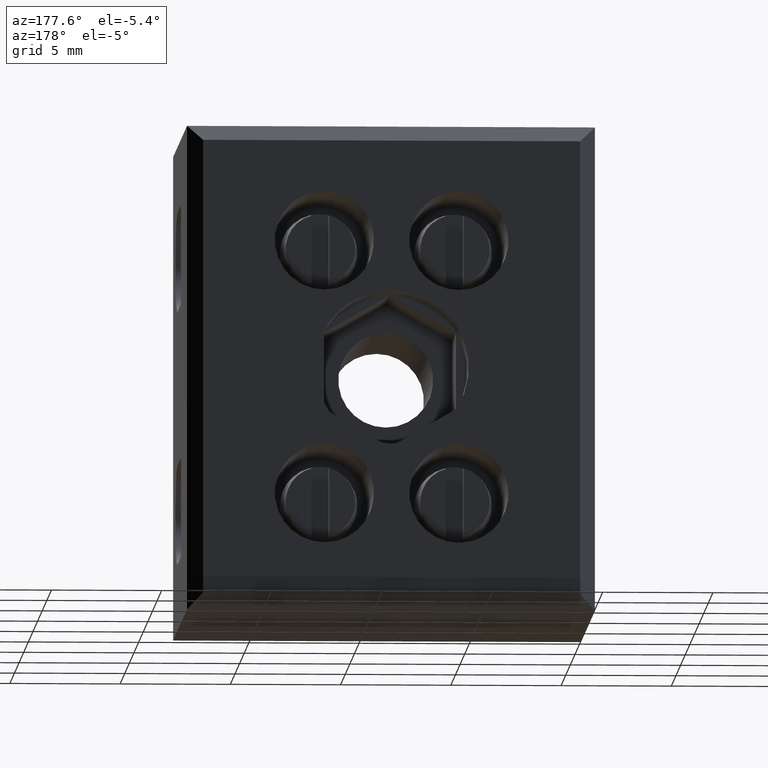
[diagram: clean part render]
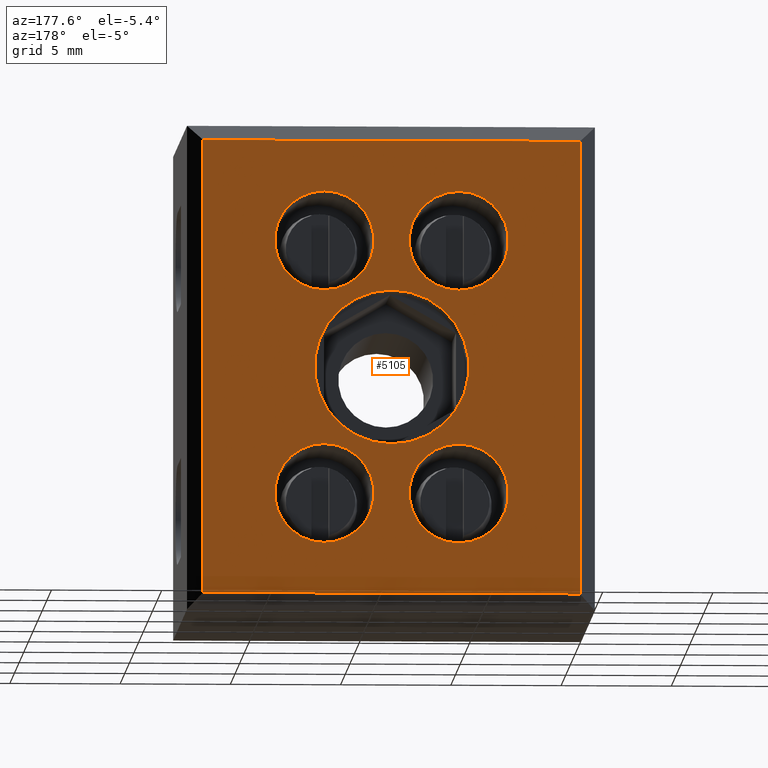
[diagram: same view with one face highlighted and labeled with its STEP entity id]
A machine part, auxiliary view. The second image highlights one B-rep face of the part: STEP entity #5105.
In plain terms, the highlighted planar face has unit normal (0, -1, 0).
Its self-contained STEP definition (entity closure, byte-faithful):
#86 = VERTEX_POINT ( 'NONE', #318 ) ;
#91 = VERTEX_POINT ( 'NONE', #323 ) ;
#105 = VERTEX_POINT ( 'NONE', #354 ) ;
#114 = VERTEX_POINT ( 'NONE', #350 ) ;
#116 = VERTEX_POINT ( 'NONE', #376 ) ;
#118 = VERTEX_POINT ( 'NONE', #342 ) ;
#136 = VERTEX_POINT ( 'NONE', #353 ) ;
#142 = VERTEX_POINT ( 'NONE', #366 ) ;
#148 = VERTEX_POINT ( 'NONE', #374 ) ;
#168 = VERTEX_POINT ( 'NONE', #400 ) ;
#170 = VERTEX_POINT ( 'NONE', #395 ) ;
#206 = VERTEX_POINT ( 'NONE', #425 ) ;
#273 = VERTEX_POINT ( 'NONE', #445 ) ;
#284 = VERTEX_POINT ( 'NONE', #522 ) ;
#318 = CARTESIAN_POINT ( 'NONE',  ( 8.999999999999996400, 16.50000000000000000, -7.246091777729321700 ) ) ;
#323 = CARTESIAN_POINT ( 'NONE',  ( 12.05491892012632800, 16.50000000000000000, -18.74609177772888600 ) ) ;
#342 = CARTESIAN_POINT ( 'NONE',  ( 8.999999999999996400, 16.50000000000000000, -14.24609177772932100 ) ) ;
#350 = CARTESIAN_POINT ( 'NONE',  ( 5.954918920126328200, 16.50000000000000000, -2.746091777728874900 ) ) ;
#353 = CARTESIAN_POINT ( 'NONE',  ( 5.954918920126328200, 16.50000000000000000, -7.246091777728884700 ) ) ;
#354 = CARTESIAN_POINT ( 'NONE',  ( 12.05491892012632800, 16.50000000000000000, -7.246091777728879400 ) ) ;
#366 = CARTESIAN_POINT ( 'NONE',  ( 5.954918920126328200, 16.50000000000000000, -18.74609177772888200 ) ) ;
#374 = CARTESIAN_POINT ( 'NONE',  ( 5.954918920126328200, 16.50000000000000000, -14.24609177772887500 ) ) ;
#376 = CARTESIAN_POINT ( 'NONE',  ( 12.05491892012632800, 16.50000000000000000, -14.24609177772887300 ) ) ;
#395 = CARTESIAN_POINT ( 'NONE',  ( 0.4549189201263244000, 16.50000000000000000, -21.04609177772887900 ) ) ;
#400 = CARTESIAN_POINT ( 'NONE',  ( 12.05491892012632800, 16.50000000000000000, -2.746091777728878000 ) ) ;
#425 = CARTESIAN_POINT ( 'NONE',  ( 17.55491892012612700, 16.50000000000000000, -0.4460917777296855600 ) ) ;
#445 = CARTESIAN_POINT ( 'NONE',  ( 0.4549189201263244000, 16.50000000000000000, -0.4460917777296855600 ) ) ;
#522 = CARTESIAN_POINT ( 'NONE',  ( 17.55491892012612700, 16.50000000000000000, -21.04609177772887900 ) ) ;
#689 = CARTESIAN_POINT ( 'NONE',  ( 5.954918920126328200, 16.50000000000000000, -16.49609177772887800 ) ) ;
#699 = DIRECTION ( 'NONE',  ( 0.0000000000000000000, 1.000000000000000000, 0.0000000000000000000 ) ) ;
#747 = LINE ( 'NONE', #755, #3249 ) ;
#755 = CARTESIAN_POINT ( 'NONE',  ( 17.00132410411470100, 16.50000000000000000, -0.4460917777296855600 ) ) ;
#764 = DIRECTION ( 'NONE',  ( 0.0000000000000000000, 0.0000000000000000000, 1.000000000000000000 ) ) ;
#782 = DIRECTION ( 'NONE',  ( 0.0000000000000000000, 1.000000000000000000, 0.0000000000000000000 ) ) ;
#784 = DIRECTION ( 'NONE',  ( 1.000000000000000000, 0.0000000000000000000, 0.0000000000000000000 ) ) ;
#807 = CARTESIAN_POINT ( 'NONE',  ( 8.999999999999996400, 16.50000000000000000, -10.74609177772932100 ) ) ;
#812 = DIRECTION ( 'NONE',  ( 0.0000000000000000000, 0.0000000000000000000, 1.000000000000000000 ) ) ;
#1019 = AXIS2_PLACEMENT_3D ( 'NONE', #2611, #2581, #2600 ) ;
#1108 = AXIS2_PLACEMENT_3D ( 'NONE', #4010, #4001, #4008 ) ;
#1115 = VECTOR ( 'NONE', #4028, 1000.000000000000000 ) ;
#1120 = CIRCLE ( 'NONE', #1108, 2.250000000000000900 ) ;
#1197 = CIRCLE ( 'NONE', #1202, 2.250000000000004900 ) ;
#1202 = AXIS2_PLACEMENT_3D ( 'NONE', #3028, #2993, #2992 ) ;
#1247 = CIRCLE ( 'NONE', #1255, 2.250000000000005300 ) ;
#1255 = AXIS2_PLACEMENT_3D ( 'NONE', #3055, #3044, #3046 ) ;
#1310 = EDGE_LOOP ( 'NONE', ( #1886, #1923 ) ) ;
#1315 = EDGE_LOOP ( 'NONE', ( #1872, #1896 ) ) ;
#1363 = EDGE_LOOP ( 'NONE', ( #1863, #1914, #1895, #1905 ) ) ;
#1366 = EDGE_LOOP ( 'NONE', ( #1898, #1942 ) ) ;
#1377 = EDGE_LOOP ( 'NONE', ( #1900, #1996 ) ) ;
#1389 = EDGE_LOOP ( 'NONE', ( #1867, #1910 ) ) ;
#1516 = EDGE_CURVE ( 'NONE', #142, #148, #3225, .T. ) ;
#1546 = EDGE_CURVE ( 'NONE', #273, #206, #747, .T. ) ;
#1551 = EDGE_CURVE ( 'NONE', #86, #118, #3277, .T. ) ;
#1583 = EDGE_CURVE ( 'NONE', #284, #170, #4496, .T. ) ;
#1617 = EDGE_CURVE ( 'NONE', #168, #105, #3370, .T. ) ;
#1628 = EDGE_CURVE ( 'NONE', #116, #91, #3402, .T. ) ;
#1647 = EDGE_CURVE ( 'NONE', #114, #136, #3391, .T. ) ;
#1659 = EDGE_CURVE ( 'NONE', #206, #284, #4568, .T. ) ;
#1863 = ORIENTED_EDGE ( 'NONE', *, *, #1659, .T. ) ;
#1867 = ORIENTED_EDGE ( 'NONE', *, *, #1551, .F. ) ;
#1872 = ORIENTED_EDGE ( 'NONE', *, *, #1628, .F. ) ;
#1886 = ORIENTED_EDGE ( 'NONE', *, *, #1647, .F. ) ;
#1895 = ORIENTED_EDGE ( 'NONE', *, *, #2408, .T. ) ;
#1896 = ORIENTED_EDGE ( 'NONE', *, *, #5058, .F. ) ;
#1898 = ORIENTED_EDGE ( 'NONE', *, *, #1617, .F. ) ;
#1900 = ORIENTED_EDGE ( 'NONE', *, *, #2381, .F. ) ;
#1905 = ORIENTED_EDGE ( 'NONE', *, *, #1546, .T. ) ;
#1910 = ORIENTED_EDGE ( 'NONE', *, *, #2366, .F. ) ;
#1914 = ORIENTED_EDGE ( 'NONE', *, *, #1583, .T. ) ;
#1923 = ORIENTED_EDGE ( 'NONE', *, *, #5041, .F. ) ;
#1942 = ORIENTED_EDGE ( 'NONE', *, *, #2405, .F. ) ;
#1996 = ORIENTED_EDGE ( 'NONE', *, *, #1516, .F. ) ;
#2366 = EDGE_CURVE ( 'NONE', #118, #86, #3555, .T. ) ;
#2381 = EDGE_CURVE ( 'NONE', #148, #142, #3582, .T. ) ;
#2405 = EDGE_CURVE ( 'NONE', #105, #168, #1120, .T. ) ;
#2408 = EDGE_CURVE ( 'NONE', #170, #273, #4002, .T. ) ;
#2576 = FACE_OUTER_BOUND ( 'NONE', #1363, .T. ) ;
#2580 = FACE_BOUND ( 'NONE', #1366, .T. ) ;
#2581 = DIRECTION ( 'NONE',  ( 0.0000000000000000000, -1.000000000000000000, 0.0000000000000000000 ) ) ;
#2584 = FACE_BOUND ( 'NONE', #1389, .T. ) ;
#2585 = PLANE ( 'NONE',  #1019 ) ;
#2593 = FACE_BOUND ( 'NONE', #1315, .T. ) ;
#2600 = DIRECTION ( 'NONE',  ( 0.0000000000000000000, -0.0000000000000000000, -1.000000000000000000 ) ) ;
#2605 = FACE_BOUND ( 'NONE', #1310, .T. ) ;
#2609 = FACE_BOUND ( 'NONE', #1377, .T. ) ;
#2611 = CARTESIAN_POINT ( 'NONE',  ( 17.00132410411470100, 16.50000000000000000, 0.2539082374673484700 ) ) ;
#2992 = DIRECTION ( 'NONE',  ( 0.0000000000000000000, 0.0000000000000000000, 1.000000000000000000 ) ) ;
#2993 = DIRECTION ( 'NONE',  ( 0.0000000000000000000, 1.000000000000000000, 0.0000000000000000000 ) ) ;
#3028 = CARTESIAN_POINT ( 'NONE',  ( 5.954918920126328200, 16.50000000000000000, -4.996091777728880200 ) ) ;
#3044 = DIRECTION ( 'NONE',  ( 0.0000000000000000000, 1.000000000000000000, 0.0000000000000000000 ) ) ;
#3046 = DIRECTION ( 'NONE',  ( 0.0000000000000000000, 0.0000000000000000000, 1.000000000000000000 ) ) ;
#3055 = CARTESIAN_POINT ( 'NONE',  ( 12.05491892012632800, 16.50000000000000000, -16.49609177772887800 ) ) ;
#3225 = CIRCLE ( 'NONE', #3229, 2.250000000000003600 ) ;
#3229 = AXIS2_PLACEMENT_3D ( 'NONE', #689, #699, #764 ) ;
#3249 = VECTOR ( 'NONE', #784, 1000.000000000000000 ) ;
#3277 = CIRCLE ( 'NONE', #3320, 3.499999999999999600 ) ;
#3320 = AXIS2_PLACEMENT_3D ( 'NONE', #807, #782, #812 ) ;
#3347 = AXIS2_PLACEMENT_3D ( 'NONE', #4501, #4504, #4514 ) ;
#3348 = AXIS2_PLACEMENT_3D ( 'NONE', #4526, #4499, #4502 ) ;
#3353 = VECTOR ( 'NONE', #4490, 1000.000000000000000 ) ;
#3370 = CIRCLE ( 'NONE', #3347, 2.250000000000000900 ) ;
#3391 = CIRCLE ( 'NONE', #3404, 2.250000000000004900 ) ;
#3400 = VECTOR ( 'NONE', #4546, 1000.000000000000000 ) ;
#3402 = CIRCLE ( 'NONE', #3348, 2.250000000000005300 ) ;
#3404 = AXIS2_PLACEMENT_3D ( 'NONE', #4549, #4554, #4564 ) ;
#3535 = AXIS2_PLACEMENT_3D ( 'NONE', #4431, #4432, #4433 ) ;
#3555 = CIRCLE ( 'NONE', #3535, 3.499999999999999600 ) ;
#3582 = CIRCLE ( 'NONE', #3600, 2.250000000000003600 ) ;
#3600 = AXIS2_PLACEMENT_3D ( 'NONE', #3915, #3952, #3937 ) ;
#3915 = CARTESIAN_POINT ( 'NONE',  ( 5.954918920126328200, 16.50000000000000000, -16.49609177772887800 ) ) ;
#3937 = DIRECTION ( 'NONE',  ( 0.0000000000000000000, 0.0000000000000000000, 1.000000000000000000 ) ) ;
#3952 = DIRECTION ( 'NONE',  ( 0.0000000000000000000, 1.000000000000000000, 0.0000000000000000000 ) ) ;
#4001 = DIRECTION ( 'NONE',  ( 0.0000000000000000000, 1.000000000000000000, 0.0000000000000000000 ) ) ;
#4002 = LINE ( 'NONE', #4006, #1115 ) ;
#4006 = CARTESIAN_POINT ( 'NONE',  ( 0.4549189201263244000, 16.50000000000000000, 0.2539082374673484700 ) ) ;
#4008 = DIRECTION ( 'NONE',  ( 0.0000000000000000000, 0.0000000000000000000, 1.000000000000000000 ) ) ;
#4010 = CARTESIAN_POINT ( 'NONE',  ( 12.05491892012632800, 16.50000000000000000, -4.996091777728879400 ) ) ;
#4028 = DIRECTION ( 'NONE',  ( 0.0000000000000000000, 0.0000000000000000000, 1.000000000000000000 ) ) ;
#4431 = CARTESIAN_POINT ( 'NONE',  ( 8.999999999999996400, 16.50000000000000000, -10.74609177772932100 ) ) ;
#4432 = DIRECTION ( 'NONE',  ( 0.0000000000000000000, 1.000000000000000000, 0.0000000000000000000 ) ) ;
#4433 = DIRECTION ( 'NONE',  ( 0.0000000000000000000, 0.0000000000000000000, 1.000000000000000000 ) ) ;
#4473 = CARTESIAN_POINT ( 'NONE',  ( 17.00132410411470100, 16.50000000000000000, -21.04609177772887900 ) ) ;
#4490 = DIRECTION ( 'NONE',  ( -1.000000000000000000, 0.0000000000000000000, 0.0000000000000000000 ) ) ;
#4496 = LINE ( 'NONE', #4473, #3353 ) ;
#4499 = DIRECTION ( 'NONE',  ( 0.0000000000000000000, 1.000000000000000000, 0.0000000000000000000 ) ) ;
#4501 = CARTESIAN_POINT ( 'NONE',  ( 12.05491892012632800, 16.50000000000000000, -4.996091777728879400 ) ) ;
#4502 = DIRECTION ( 'NONE',  ( 0.0000000000000000000, 0.0000000000000000000, 1.000000000000000000 ) ) ;
#4504 = DIRECTION ( 'NONE',  ( 0.0000000000000000000, 1.000000000000000000, 0.0000000000000000000 ) ) ;
#4514 = DIRECTION ( 'NONE',  ( 0.0000000000000000000, 0.0000000000000000000, 1.000000000000000000 ) ) ;
#4526 = CARTESIAN_POINT ( 'NONE',  ( 12.05491892012632800, 16.50000000000000000, -16.49609177772887800 ) ) ;
#4546 = DIRECTION ( 'NONE',  ( 0.0000000000000000000, 0.0000000000000000000, -1.000000000000000000 ) ) ;
#4549 = CARTESIAN_POINT ( 'NONE',  ( 5.954918920126328200, 16.50000000000000000, -4.996091777728880200 ) ) ;
#4550 = CARTESIAN_POINT ( 'NONE',  ( 17.55491892012612700, 16.50000000000000000, 0.2539082374673484700 ) ) ;
#4554 = DIRECTION ( 'NONE',  ( 0.0000000000000000000, 1.000000000000000000, 0.0000000000000000000 ) ) ;
#4564 = DIRECTION ( 'NONE',  ( 0.0000000000000000000, 0.0000000000000000000, 1.000000000000000000 ) ) ;
#4568 = LINE ( 'NONE', #4550, #3400 ) ;
#5041 = EDGE_CURVE ( 'NONE', #136, #114, #1197, .T. ) ;
#5058 = EDGE_CURVE ( 'NONE', #91, #116, #1247, .T. ) ;
#5105 = ADVANCED_FACE ( 'NONE', ( #2576, #2584, #2580, #2605, #2593, #2609 ), #2585, .F. ) ;